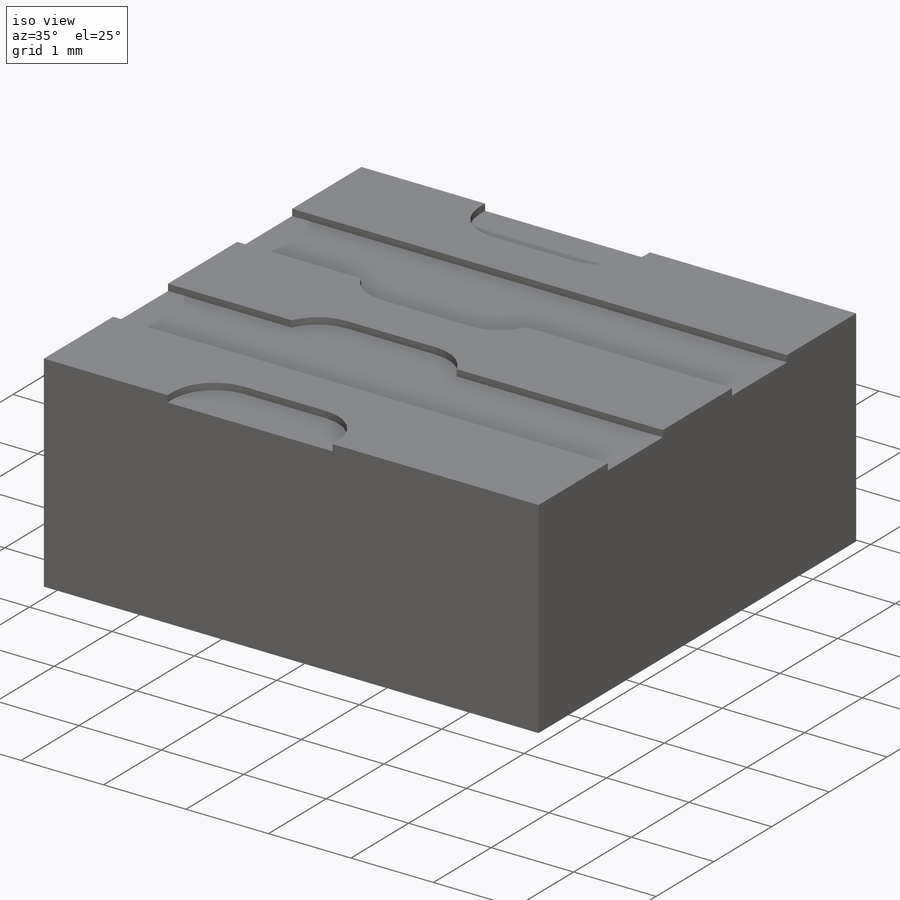
[diagram: iso view]
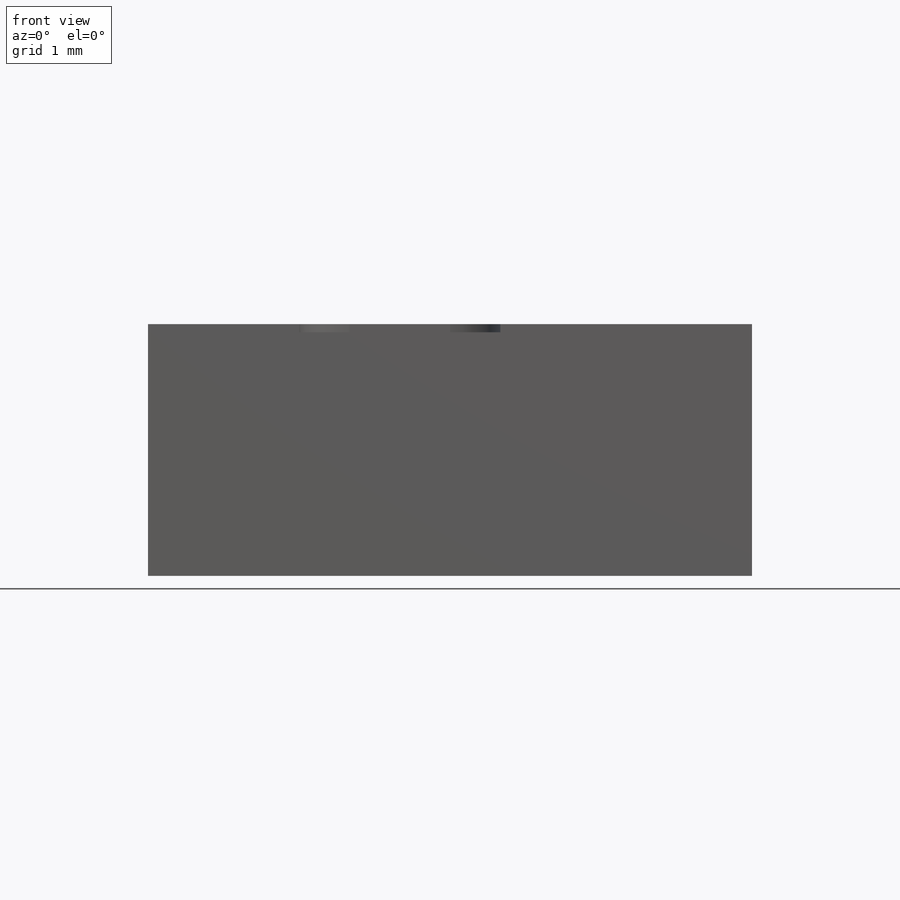
[diagram: front view]
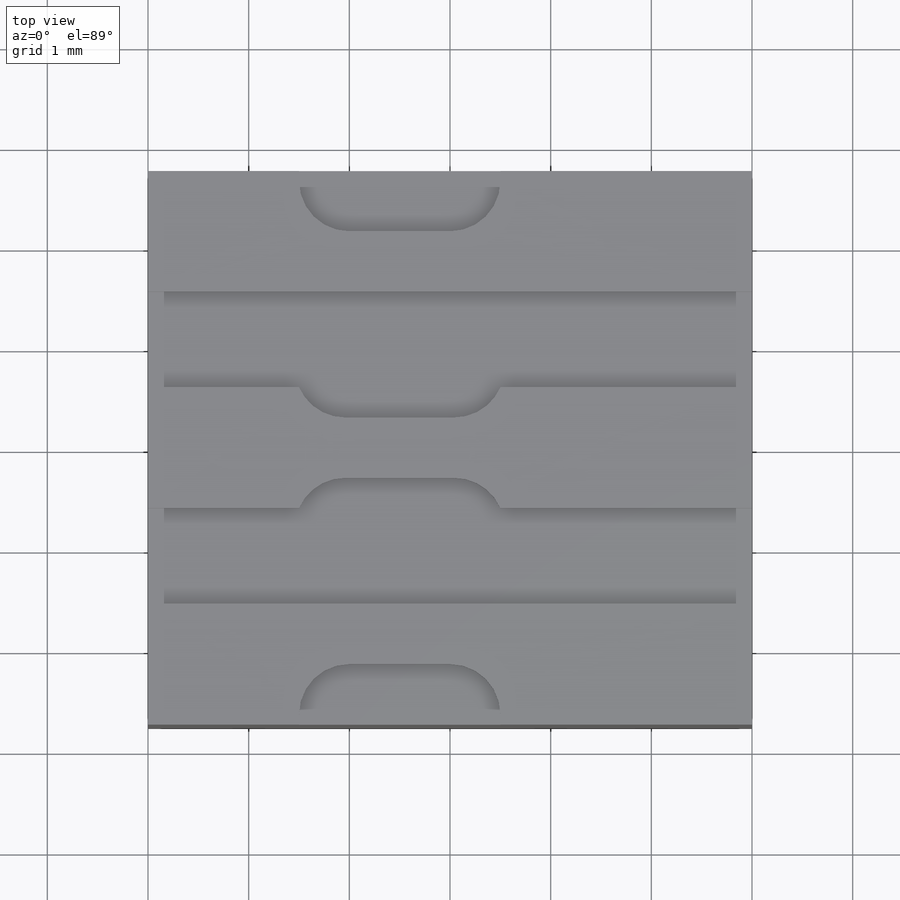
[diagram: top view]
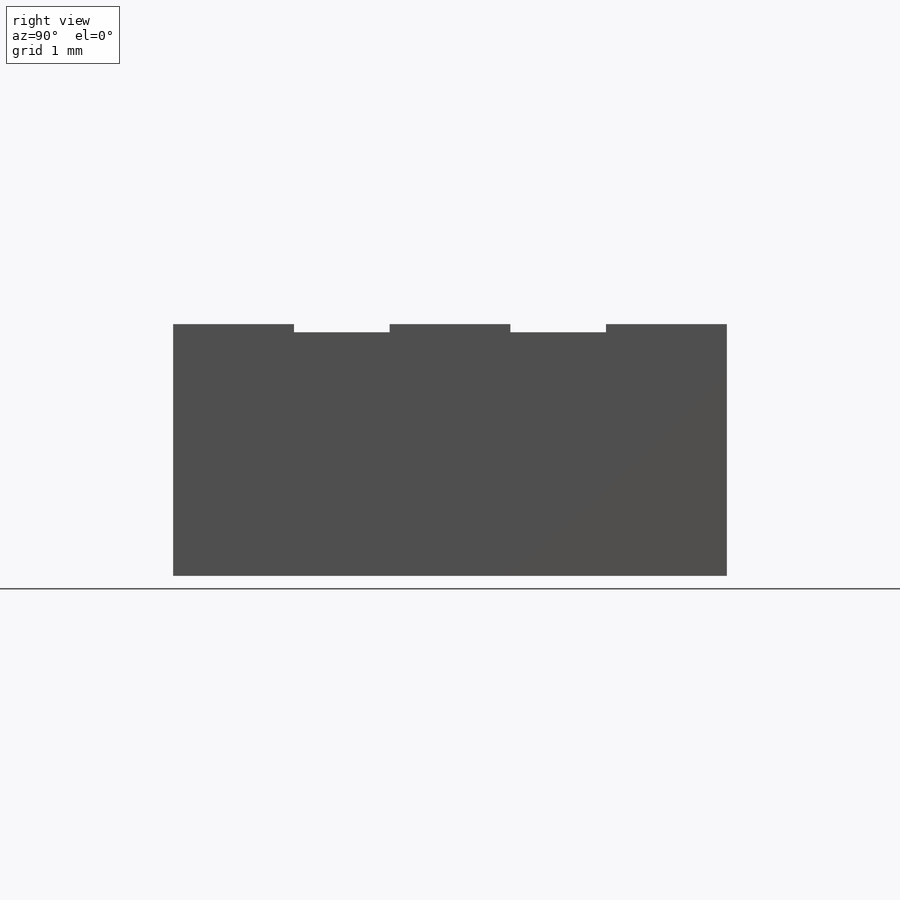
[diagram: right view]
SOLIDWORKS PART (.sldprt)
format: sldprt  version: not decoded by parser v0  size: 252,416 bytes
history: native  units: mm
features: sketch x3, extrude x2, material x1, cut_extrude x1, fillet x1 (+12 scaffold rows collapsed)
feature tree (20):
  scaffold x12  (default folders/planes/origin — collapsed)
  material  "A-Glass Fiber"
  sketch  "Sketch1"  dims[D1=2.5mm D2=6.0mm]
  extrude  "Boss-Extrude1"  Depth=5.5mm
  sketch  "Sketch3"  dims[c1.D1=8.0mm c1.D2=1.85mm c2.D1=1.0mm c2.D3=0.3mm c2.D4=0.3mm c2.D5=0.3mm c2.D6=0.3mm]
  cut_extrude  "Cut-Extrude1"  Depth=0.08mm
  sketch  "Sketch7"  dims[D1=1.5mm D2=2.5mm]
  extrude  "Boss-Extrude3"  Depth=0.2mm
  fillet  "Fillet2"  Radius=0.5mm
decode coverage: 7 of 7 modeling features carry decoded parameters
note: suppression state not decoded; provenance and decode notes live in map.json
